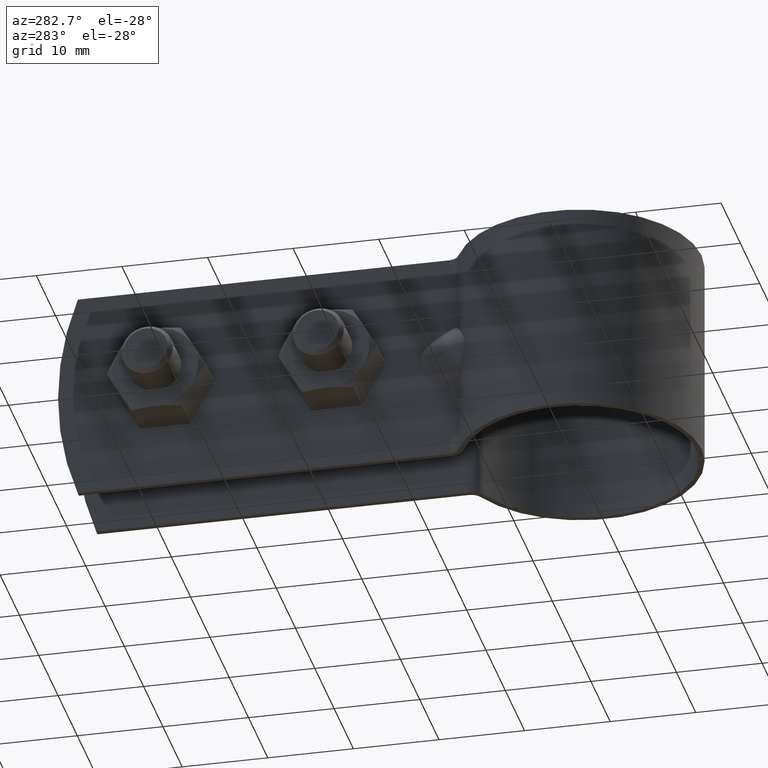
[diagram: clean part render]
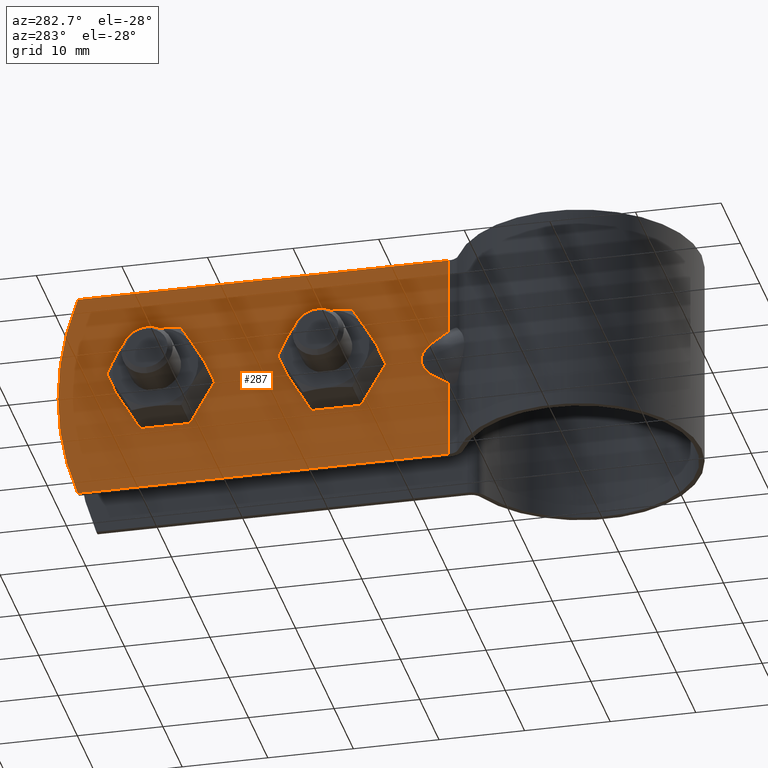
[diagram: same view with one face highlighted and labeled with its STEP entity id]
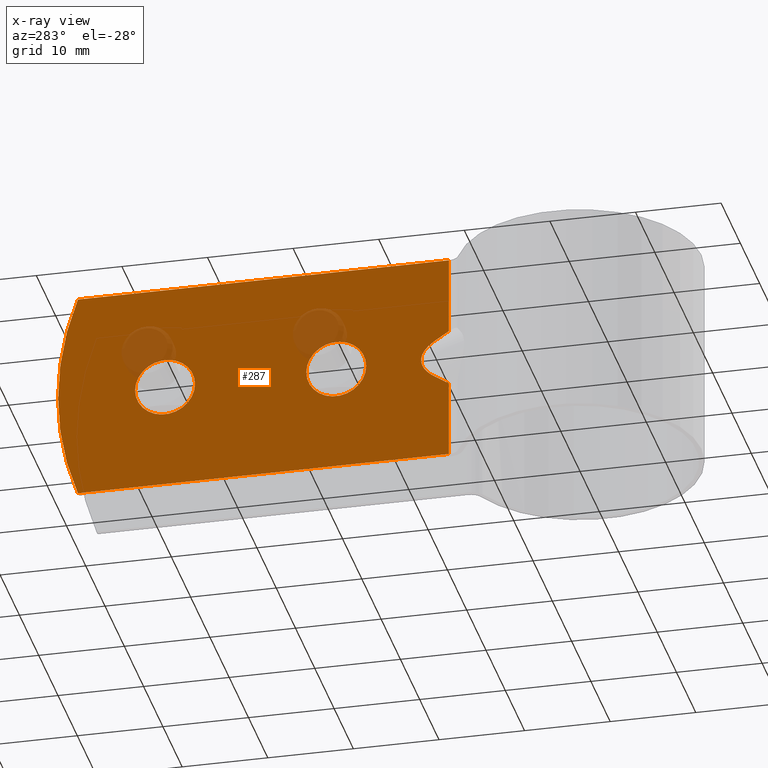
[diagram: x-ray of the same camera — body ghosted, the highlighted face saturated]
A machine part, auxiliary view. The second image highlights one B-rep face of the part: STEP entity #287.
The next image is the same camera in x-ray: the body ghosted, the highlighted face saturated — about 5% of this face is hidden behind the body in this view.
In plain terms, the highlighted planar face has unit normal (-1, 0, 0).
Its self-contained STEP definition (entity closure, byte-faithful):
#287 = ADVANCED_FACE( '', ( #414, #415, #416 ), #417, .T. );
#414 = FACE_OUTER_BOUND( '', #646, .T. );
#415 = FACE_BOUND( '', #647, .T. );
#416 = FACE_BOUND( '', #648, .T. );
#417 = PLANE( '', #649 );
#646 = EDGE_LOOP( '', ( #982, #983, #984, #985, #986, #987, #988, #989 ) );
#647 = EDGE_LOOP( '', ( #990 ) );
#648 = EDGE_LOOP( '', ( #991 ) );
#649 = AXIS2_PLACEMENT_3D( '', #992, #993, #994 );
#982 = ORIENTED_EDGE( '', *, *, #1653, .F. );
#983 = ORIENTED_EDGE( '', *, *, #1687, .T. );
#984 = ORIENTED_EDGE( '', *, *, #1688, .F. );
#985 = ORIENTED_EDGE( '', *, *, #1681, .T. );
#986 = ORIENTED_EDGE( '', *, *, #1625, .T. );
#987 = ORIENTED_EDGE( '', *, *, #1689, .T. );
#988 = ORIENTED_EDGE( '', *, *, #1650, .F. );
#989 = ORIENTED_EDGE( '', *, *, #1648, .F. );
#990 = ORIENTED_EDGE( '', *, *, #1677, .T. );
#991 = ORIENTED_EDGE( '', *, *, #1673, .T. );
#992 = CARTESIAN_POINT( '', ( -5.10000000000000, 59.8339393796293, -12.5000000000000 ) );
#993 = DIRECTION( '', ( -1.00000000000000, 6.06692130572647E-017, 0.000000000000000 ) );
#994 = DIRECTION( '', ( -6.06692130572647E-017, -1.00000000000000, 0.000000000000000 ) );
#1625 = EDGE_CURVE( '', #1873, #1871, #1874, .T. );
#1648 = EDGE_CURVE( '', #1912, #1914, #1915, .T. );
#1650 = EDGE_CURVE( '', #1914, #1917, #1918, .T. );
#1653 = EDGE_CURVE( '', #1920, #1912, #1922, .T. );
#1673 = EDGE_CURVE( '', #1956, #1956, #1957, .F. );
#1677 = EDGE_CURVE( '', #1964, #1964, #1965, .F. );
#1681 = EDGE_CURVE( '', #1972, #1873, #1973, .T. );
#1687 = EDGE_CURVE( '', #1920, #1982, #1983, .T. );
#1688 = EDGE_CURVE( '', #1972, #1982, #1984, .T. );
#1689 = EDGE_CURVE( '', #1871, #1917, #1985, .T. );
#1871 = VERTEX_POINT( '', #2275 );
#1873 = VERTEX_POINT( '', #2277 );
#1874 = LINE( '', #2278, #2279 );
#1912 = VERTEX_POINT( '', #2361 );
#1914 = VERTEX_POINT( '', #2364 );
#1915 = ELLIPSE( '', #2365, 8.81075705834106, 4.00000000000000 );
#1917 = VERTEX_POINT( '', #2368 );
#1918 = LINE( '', #2369, #2370 );
#1920 = VERTEX_POINT( '', #2372 );
#1922 = LINE( '', #2374, #2375 );
#1956 = VERTEX_POINT( '', #2451 );
#1957 = CIRCLE( '', #2452, 3.50000000000000 );
#1964 = VERTEX_POINT( '', #2459 );
#1965 = CIRCLE( '', #2460, 3.50000000000000 );
#1972 = VERTEX_POINT( '', #2467 );
#1973 = CIRCLE( '', #2468, 35.0000000000000 );
#1982 = VERTEX_POINT( '', #2479 );
#1983 = LINE( '', #2480, #2481 );
#1984 = LINE( '', #2482, #2483 );
#1985 = LINE( '', #2484, #2485 );
#2275 = CARTESIAN_POINT( '', ( -5.10000000000000, 14.1813257490264, -12.5000000000000 ) );
#2277 = CARTESIAN_POINT( '', ( -5.10000000000000, 57.5256814561844, -12.5000000000000 ) );
#2278 = CARTESIAN_POINT( '', ( -5.10000000000000, 59.8339393796293, -12.5000000000000 ) );
#2279 = VECTOR( '', #2977, 1000.00000000000 );
#2361 = CARTESIAN_POINT( '', ( -5.10000000000000, 15.8271868338750, 2.29430574540416 ) );
#2364 = CARTESIAN_POINT( '', ( -5.10000000000000, 15.8271868338749, -2.29430574540421 ) );
#2365 = AXIS2_PLACEMENT_3D( '', #3016, #3017, #3018 );
#2368 = CARTESIAN_POINT( '', ( -5.10000000000000, 14.1813257490264, -3.36142550010250 ) );
#2369 = CARTESIAN_POINT( '', ( -5.10000000000000, 42.1509763745119, 14.7731345725737 ) );
#2370 = VECTOR( '', #3020, 1000.00000000000 );
#2372 = CARTESIAN_POINT( '', ( -5.10000000000000, 14.1813257490264, 3.36142550010247 ) );
#2374 = CARTESIAN_POINT( '', ( -5.10000000000000, 53.5628264837874, -22.1721859271324 ) );
#2375 = VECTOR( '', #3027, 1000.00000000000 );
#2451 = CARTESIAN_POINT( '', ( -5.10000000000000, 23.8339393796293, -8.67361737988404E-016 ) );
#2452 = AXIS2_PLACEMENT_3D( '', #3063, #3064, #3065 );
#2459 = CARTESIAN_POINT( '', ( -5.10000000000000, 43.8339393796293, -8.67361737988404E-016 ) );
#2460 = AXIS2_PLACEMENT_3D( '', #3075, #3076, #3077 );
#2467 = CARTESIAN_POINT( '', ( -5.10000000000000, 57.5256814561844, 12.5000000000000 ) );
#2468 = AXIS2_PLACEMENT_3D( '', #3087, #3088, #3089 );
#2479 = CARTESIAN_POINT( '', ( -5.10000000000000, 14.1813257490264, 12.5000000000000 ) );
#2480 = CARTESIAN_POINT( '', ( -5.10000000000000, 14.1813257490264, -12.5000000000000 ) );
#2481 = VECTOR( '', #3101, 1000.00000000000 );
#2482 = CARTESIAN_POINT( '', ( -5.10000000000000, 59.8339393796293, 12.5000000000000 ) );
#2483 = VECTOR( '', #3102, 1000.00000000000 );
#2484 = CARTESIAN_POINT( '', ( -5.10000000000000, 14.1813257490264, -12.5000000000000 ) );
#2485 = VECTOR( '', #3103, 1000.00000000000 );
#2977 = DIRECTION( '', ( -6.06692130572647E-017, -1.00000000000000, 0.000000000000000 ) );
#3016 = CARTESIAN_POINT( '', ( -5.10000000000000, 8.60983717780126, -3.07505438184128E-014 ) );
#3017 = DIRECTION( '', ( -1.00000000000000, 6.06692130572647E-017, 0.000000000000000 ) );
#3018 = DIRECTION( '', ( 6.06692130572647E-017, 1.00000000000000, 9.96825944130074E-016 ) );
#3020 = DIRECTION( '', ( -5.09056978337516E-017, -0.839069690679893, -0.544023946331730 ) );
#3027 = DIRECTION( '', ( 5.09056978337516E-017, 0.839069690679893, -0.544023946331730 ) );
#3063 = CARTESIAN_POINT( '', ( -5.10000000000000, 27.3339393796293, -8.67361737988404E-016 ) );
#3064 = DIRECTION( '', ( -1.00000000000000, 6.06692130572647E-017, 0.000000000000000 ) );
#3065 = DIRECTION( '', ( -6.06692130572647E-017, -1.00000000000000, 0.000000000000000 ) );
#3075 = CARTESIAN_POINT( '', ( -5.10000000000000, 47.3339393796293, -8.67361737988404E-016 ) );
#3076 = DIRECTION( '', ( -1.00000000000000, 6.06692130572647E-017, 0.000000000000000 ) );
#3077 = DIRECTION( '', ( -6.06692130572647E-017, -1.00000000000000, 0.000000000000000 ) );
#3087 = CARTESIAN_POINT( '', ( -5.10000000000000, 24.8339393796293, 0.000000000000000 ) );
#3088 = DIRECTION( '', ( -1.00000000000000, 6.06692130572647E-017, 0.000000000000000 ) );
#3089 = DIRECTION( '', ( -6.06692130572647E-017, -1.00000000000000, 0.000000000000000 ) );
#3101 = DIRECTION( '', ( 0.000000000000000, 0.000000000000000, 1.00000000000000 ) );
#3102 = DIRECTION( '', ( -6.06692130572647E-017, -1.00000000000000, 0.000000000000000 ) );
#3103 = DIRECTION( '', ( 0.000000000000000, 0.000000000000000, 1.00000000000000 ) );